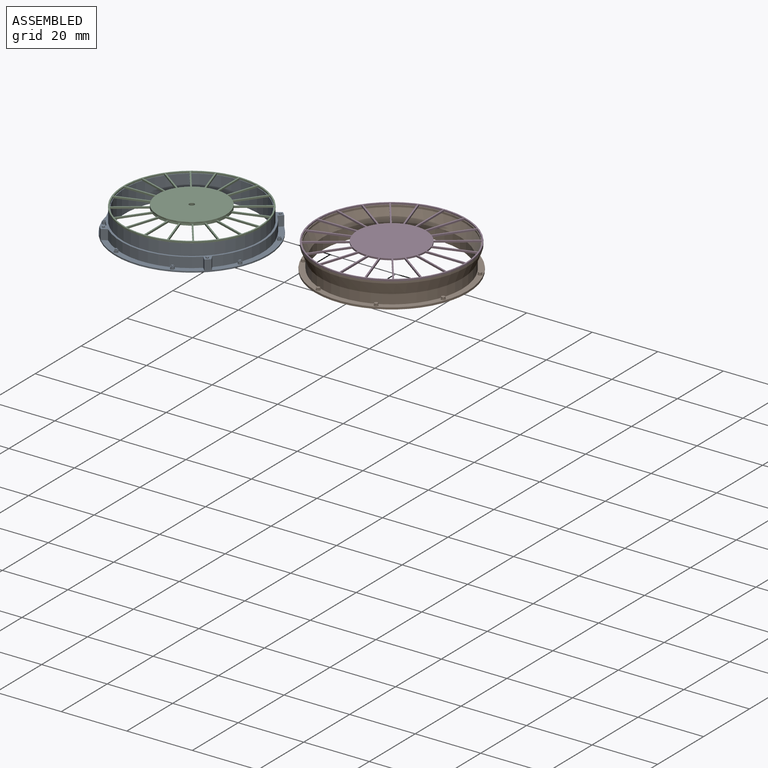
[diagram: assembled view]
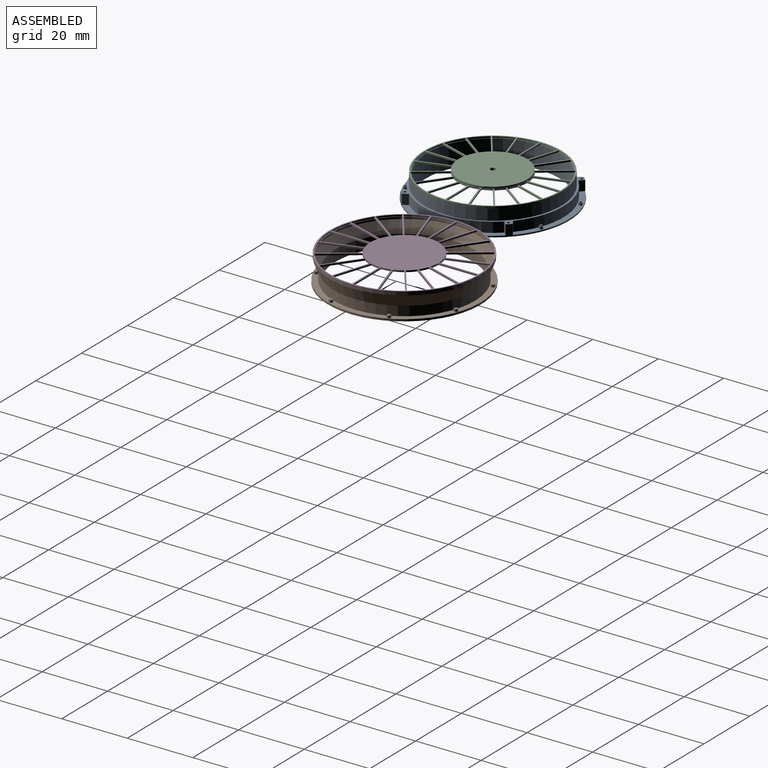
[diagram: assembled view, second angle]
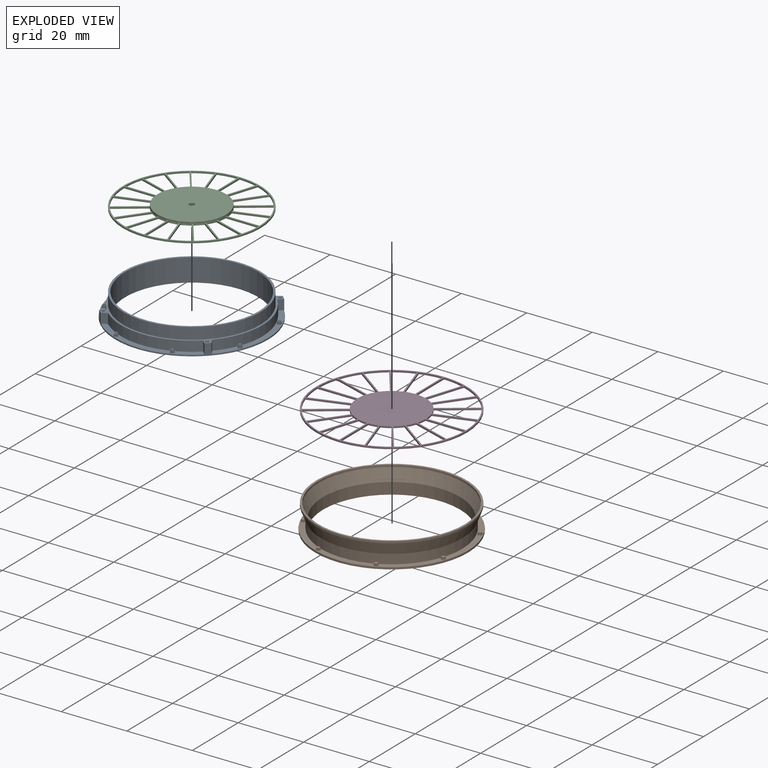
[diagram: exploded view]
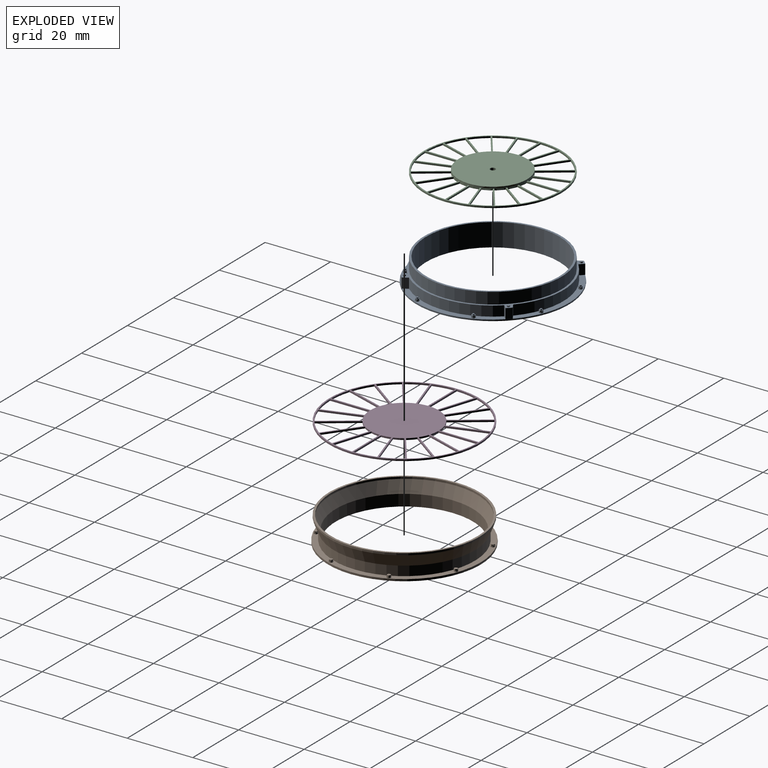
[diagram: exploded view, second angle]
ASSEMBLY  parts=4 mates=2
PART A: 166 faces, bbox 46.6x46.6x7 mm
  f0: plane 0.44x0.07mm, normal (0,0,1), area 0mm2, adj f154,f156
  f1: plane 0.39x0.21mm, normal (0,0,1), area 0mm2, adj f154,f161
  f2: plane 0.37x0.23mm, normal (0,0,1), area 0mm2, adj f154,f160
  f3: plane 0.44x0.07mm, normal (0,0,1), area 0mm2, adj f154,f159
  f4: plane 0.39x0.21mm, normal (0,0,1), area 0mm2, adj f154,f158
  f5: plane 31.66x7.44mm, normal (0,0,1), area 55.8mm2, adj f26,f27,f31,f88,f99,f153
  f6: cylinder r=21.57mm len=28.87mm, axis (0,0,-1), area 96.7mm2, adj f12,f30,f142,f152
  f7: plane 0.44x0.07mm, normal (0,0,1), area 0mm2, adj f143,f145
  f8: plane 0.39x0.21mm, normal (0,0,1), area 0mm2, adj f143,f150
  f9: plane 0.37x0.23mm, normal (0,0,1), area 0mm2, adj f143,f149
  f10: plane 0.44x0.07mm, normal (0,0,1), area 0mm2, adj f143,f148
  f11: plane 0.39x0.21mm, normal (0,0,1), area 0mm2, adj f143,f147
  f12: plane 31.66x7.44mm, normal (0,0,1), area 55.8mm2, adj f6,f27,f66,f77,f142,f152
  f13: cylinder r=21.57mm len=28.87mm, axis (0,0,-1), area 96.7mm2, adj f20,f30,f131,f141
  f14: plane 0.44x0.07mm, normal (0,0,1), area 0mm2, adj f132,f134
  f15: plane 0.39x0.21mm, normal (0,0,1), area 0mm2, adj f132,f139
  f16: plane 0.37x0.23mm, normal (0,0,1), area 0mm2, adj f132,f138
  f17: plane 0.44x0.07mm, normal (0,0,1), area 0mm2, adj f132,f137
  f18: plane 0.39x0.21mm, normal (0,0,1), area 0mm2, adj f132,f136
  f19: cylinder r=21.57mm len=28.87mm, axis (0,0,-1), area 96.7mm2, adj f28,f30,f32,f130
  f20: plane 31.66x7.44mm, normal (0,0,1), area 55.8mm2, adj f13,f27,f44,f55,f131,f141
  f21: plane 0.44x0.07mm, normal (0,0,1), area 0mm2, adj f121,f123
  f22: plane 0.39x0.21mm, normal (0,0,1), area 0mm2, adj f121,f128
  f23: plane 0.37x0.23mm, normal (0,0,1), area 0mm2, adj f121,f127
  f24: plane 0.44x0.07mm, normal (0,0,1), area 0mm2, adj f121,f126
  f25: plane 0.39x0.21mm, normal (0,0,1), area 0mm2, adj f121,f125
  f26: cylinder r=21.57mm len=28.87mm, axis (0,0,-1), area 96.7mm2, adj f5,f30,f31,f153
  f27: cylinder r=23.32mm len=46.64mm, axis (0,0,-1), area 86.4mm2, adj f5,f12,f20,f28,f29,f30,f31,f32
  f28: plane 31.66x7.44mm, normal (0,0,1), area 55.8mm2, adj f19,f27,f32,f33,f110,f130
  f29: plane 46.64x46.64mm, normal (0,0,-1), area 404.5mm2, adj f27,f163
  f30: plane 43.14x43.14mm, normal (0,0,1), area 92.1mm2, adj f6,f13,f19,f26,f27,f31,f32,f121
  f31: plane 3.06x1.24mm, normal (-0.71,-0.71,0), area 5.3mm2, adj f5,f26,f27,f30
  f32: plane 3.06x1.55mm, normal (0.85,0.52,0), area 5.6mm2, adj f19,f27,f28,f30
  f33: cylinder r=0.6mm len=1.2mm, axis (0,0,-1), area 1.1mm2, adj f28,f34
  f34: plane 1.2x1.2mm, normal (0,0,1), area 0.3mm2, adj f33,f35,f36,f37,f38,f39,f40
  f35: plane 0.58x0.38mm, normal (0.99,-0.15,-0.05), area 0.2mm2, adj f34,f36,f40,f41
  f36: plane 0.47x0.38mm, normal (0.62,0.78,-0.05), area 0.2mm2, adj f34,f35,f37,f41
  f37: plane 0.55x0.38mm, normal (-0.36,0.93,-0.05), area 0.2mm2, adj f34,f36,f38,f41
  f38: plane 0.58x0.38mm, normal (-0.99,0.15,-0.05), area 0.2mm2, adj f34,f37,f39,f41
  f39: plane 0.47x0.38mm, normal (-0.62,-0.78,-0.05), area 0.2mm2, adj f34,f38,f40,f41
  f40: plane 0.55x0.38mm, normal (0.36,-0.93,-0.05), area 0.2mm2, adj f34,f35,f39,f41
  f41: plane 1.17x1.1mm, normal (0,0,1), area 0.6mm2, adj f35,f36,f37,f38,f39,f40,f42
  f42: cylinder r=0.33mm len=0.66mm, axis (0,0,-1), area 0.6mm2, adj f41,f43
  f43: plane 0.66x0.66mm, normal (0,0,1), area 0.3mm2, adj f42
  f44: cylinder r=0.6mm len=1.2mm, axis (0,0,-1), area 1.1mm2, adj f20,f45
  f45: plane 1.2x1.2mm, normal (0,0,1), area 0.3mm2, adj f44,f46,f47,f48,f49,f50,f51
  f46: plane 0.48x0.38mm, normal (0.8,0.59,-0.05), area 0.2mm2, adj f45,f47,f51,f52
  f47: plane 0.59x0.38mm, normal (-0.11,0.99,-0.05), area 0.2mm2, adj f45,f46,f48,f52
  f48: plane 0.54x0.38mm, normal (-0.91,0.4,-0.05), area 0.2mm2, adj f45,f47,f49,f52
  f49: plane 0.48x0.38mm, normal (-0.8,-0.59,-0.05), area 0.2mm2, adj f45,f48,f50,f52
  f50: plane 0.59x0.38mm, normal (0.11,-0.99,-0.05), area 0.2mm2, adj f45,f49,f51,f52
  f51: plane 0.54x0.38mm, normal (0.91,-0.4,-0.05), area 0.2mm2, adj f45,f46,f50,f52
  f52: plane 1.18x1.08mm, normal (0,0,1), area 0.6mm2, adj f46,f47,f48,f49,f50,f51,f53
  f53: cylinder r=0.33mm len=0.66mm, axis (0,0,-1), area 0.6mm2, adj f52,f54
  f54: plane 0.66x0.66mm, normal (0,0,1), area 0.3mm2, adj f53
  f55: cylinder r=0.6mm len=1.2mm, axis (0,0,-1), area 1.1mm2, adj f20,f56
  f56: plane 1.2x1.2mm, normal (0,0,1), area 0.3mm2, adj f55,f57,f58,f59,f60,f61,f62
  f57: plane 0.58x0.38mm, normal (0.15,0.99,-0.05), area 0.2mm2, adj f56,f58,f62,f63
  f58: plane 0.47x0.38mm, normal (-0.78,0.62,-0.05), area 0.2mm2, adj f56,f57,f59,f63
  f59: plane 0.55x0.38mm, normal (-0.93,-0.36,-0.05), area 0.2mm2, adj f56,f58,f60,f63
  f60: plane 0.58x0.38mm, normal (-0.15,-0.99,-0.05), area 0.2mm2, adj f56,f59,f61,f63
  f61: plane 0.47x0.38mm, normal (0.78,-0.62,-0.05), area 0.2mm2, adj f56,f60,f62,f63
  f62: plane 0.55x0.38mm, normal (0.93,0.36,-0.05), area 0.2mm2, adj f56,f57,f61,f63
  f63: plane 1.17x1.1mm, normal (0,0,1), area 0.6mm2, adj f57,f58,f59,f60,f61,f62,f64
  f64: cylinder r=0.33mm len=0.66mm, axis (0,0,-1), area 0.6mm2, adj f63,f65
  f65: plane 0.66x0.66mm, normal (0,0,1), area 0.3mm2, adj f64
  f66: cylinder r=0.6mm len=1.2mm, axis (0,0,-1), area 1.1mm2, adj f12,f67
  f67: plane 1.2x1.2mm, normal (0,0,1), area 0.3mm2, adj f66,f68,f69,f70,f71,f72,f73
  f68: plane 0.48x0.38mm, normal (-0.59,0.8,-0.05), area 0.2mm2, adj f67,f69,f73,f74
  f69: plane 0.59x0.38mm, normal (-0.99,-0.11,-0.05), area 0.2mm2, adj f67,f68,f70,f74
  f70: plane 0.54x0.38mm, normal (-0.4,-0.91,-0.05), area 0.2mm2, adj f67,f69,f71,f74
  f71: plane 0.48x0.38mm, normal (0.59,-0.8,-0.05), area 0.2mm2, adj f67,f70,f72,f74
  f72: plane 0.59x0.38mm, normal (0.99,0.11,-0.05), area 0.2mm2, adj f67,f71,f73,f74
  f73: plane 0.54x0.38mm, normal (0.4,0.91,-0.05), area 0.2mm2, adj f67,f68,f72,f74
  f74: plane 1.18x1.08mm, normal (0,0,1), area 0.6mm2, adj f68,f69,f70,f71,f72,f73,f75
  f75: cylinder r=0.33mm len=0.66mm, axis (0,0,-1), area 0.6mm2, adj f74,f76
  f76: plane 0.66x0.66mm, normal (0,0,1), area 0.3mm2, adj f75
  f77: cylinder r=0.6mm len=1.2mm, axis (0,0,-1), area 1.1mm2, adj f12,f78
  f78: plane 1.2x1.2mm, normal (0,0,1), area 0.3mm2, adj f77,f79,f80,f81,f82,f83,f84
  f79: plane 0.58x0.38mm, normal (-0.99,0.15,-0.05), area 0.2mm2, adj f78,f80,f84,f85
  f80: plane 0.47x0.38mm, normal (-0.62,-0.78,-0.05), area 0.2mm2, adj f78,f79,f81,f85
  f81: plane 0.55x0.38mm, normal (0.36,-0.93,-0.05), area 0.2mm2, adj f78,f80,f82,f85
  f82: plane 0.58x0.38mm, normal (0.99,-0.15,-0.05), area 0.2mm2, adj f78,f81,f83,f85
  f83: plane 0.47x0.38mm, normal (0.62,0.78,-0.05), area 0.2mm2, adj f78,f82,f84,f85
  f84: plane 0.55x0.38mm, normal (-0.36,0.93,-0.05), area 0.2mm2, adj f78,f79,f83,f85
  f85: plane 1.17x1.1mm, normal (0,0,1), area 0.6mm2, adj f79,f80,f81,f82,f83,f84,f86
  f86: cylinder r=0.33mm len=0.66mm, axis (0,0,-1), area 0.6mm2, adj f85,f87
  f87: plane 0.66x0.66mm, normal (0,0,1), area 0.3mm2, adj f86
  f88: cylinder r=0.6mm len=1.2mm, axis (0,0,-1), area 1.1mm2, adj f5,f89
  f89: plane 1.2x1.2mm, normal (0,0,1), area 0.3mm2, adj f88,f90,f91,f92,f93,f94,f95
  f90: plane 0.48x0.38mm, normal (-0.8,-0.59,-0.05), area 0.2mm2, adj f89,f91,f95,f96
  f91: plane 0.59x0.38mm, normal (0.11,-0.99,-0.05), area 0.2mm2, adj f89,f90,f92,f96
  f92: plane 0.54x0.38mm, normal (0.91,-0.4,-0.05), area 0.2mm2, adj f89,f91,f93,f96
  f93: plane 0.48x0.38mm, normal (0.8,0.59,-0.05), area 0.2mm2, adj f89,f92,f94,f96
  f94: plane 0.59x0.38mm, normal (-0.11,0.99,-0.05), area 0.2mm2, adj f89,f93,f95,f96
  f95: plane 0.54x0.38mm, normal (-0.91,0.4,-0.05), area 0.2mm2, adj f89,f90,f94,f96
  f96: plane 1.18x1.08mm, normal (0,0,1), area 0.6mm2, adj f90,f91,f92,f93,f94,f95,f97
  f97: cylinder r=0.33mm len=0.66mm, axis (0,0,-1), area 0.6mm2, adj f96,f98
  f98: plane 0.66x0.66mm, normal (0,0,1), area 0.3mm2, adj f97
  f99: cylinder r=0.6mm len=1.2mm, axis (0,0,-1), area 1.1mm2, adj f5,f100
  f100: plane 1.2x1.2mm, normal (0,0,1), area 0.3mm2, adj f99,f101,f102,f103,f104,f105,f106
  f101: plane 0.58x0.38mm, normal (-0.15,-0.99,-0.05), area 0.2mm2, adj f100,f102,f106,f107
  f102: plane 0.47x0.38mm, normal (0.78,-0.62,-0.05), area 0.2mm2, adj f100,f101,f103,f107
  f103: plane 0.55x0.38mm, normal (0.93,0.36,-0.05), area 0.2mm2, adj f100,f102,f104,f107
  f104: plane 0.58x0.38mm, normal (0.15,0.99,-0.05), area 0.2mm2, adj f100,f103,f105,f107
  f105: plane 0.47x0.38mm, normal (-0.78,0.62,-0.05), area 0.2mm2, adj f100,f104,f106,f107
  f106: plane 0.55x0.38mm, normal (-0.93,-0.36,-0.05), area 0.2mm2, adj f100,f101,f105,f107
  f107: plane 1.17x1.1mm, normal (0,0,1), area 0.6mm2, adj f101,f102,f103,f104,f105,f106,f108
  f108: cylinder r=0.33mm len=0.66mm, axis (0,0,-1), area 0.6mm2, adj f107,f109
  f109: plane 0.66x0.66mm, normal (0,0,1), area 0.3mm2, adj f108
  f110: cylinder r=0.6mm len=1.2mm, axis (0,0,-1), area 1.1mm2, adj f28,f111
  f111: plane 1.2x1.2mm, normal (0,0,1), area 0.3mm2, adj f110,f112,f113,f114,f115,f116,f117
  f112: plane 0.48x0.38mm, normal (0.59,-0.8,-0.05), area 0.2mm2, adj f111,f113,f117,f118
  f113: plane 0.59x0.38mm, normal (0.99,0.11,-0.05), area 0.2mm2, adj f111,f112,f114,f118
  f114: plane 0.54x0.38mm, normal (0.4,0.91,-0.05), area 0.2mm2, adj f111,f113,f115,f118
  f115: plane 0.48x0.38mm, normal (-0.59,0.8,-0.05), area 0.2mm2, adj f111,f114,f116,f118
  f116: plane 0.59x0.38mm, normal (-0.99,-0.11,-0.05), area 0.2mm2, adj f111,f115,f117,f118
  f117: plane 0.54x0.38mm, normal (-0.4,-0.91,-0.05), area 0.2mm2, adj f111,f112,f116,f118
  f118: plane 1.18x1.08mm, normal (0,0,1), area 0.6mm2, adj f112,f113,f114,f115,f116,f117,f119
  f119: cylinder r=0.33mm len=0.66mm, axis (0,0,-1), area 0.6mm2, adj f118,f120
  f120: plane 0.66x0.66mm, normal (0,0,1), area 0.3mm2, adj f119
  f121: cylinder r=0.44mm len=0.87mm, axis (0,0,-1), area 0.2mm2, adj f21,f22,f23,f24,f25,f30,f122
  f122: plane 0.37x0.23mm, normal (0,0,1), area 0mm2, adj f121,f124
  f123: plane 0.44x0.3mm, normal (1,-0.04,0), area 0.1mm2, adj f21,f124,f128,f129
  f124: plane 0.37x0.3mm, normal (0.53,0.85,0), area 0.1mm2, adj f122,f123,f125,f129
  f125: plane 0.39x0.3mm, normal (-0.47,0.88,0), area 0.1mm2, adj f25,f124,f126,f129
  f126: plane 0.44x0.3mm, normal (-1,0.04,0), area 0.1mm2, adj f24,f125,f127,f129
  f127: plane 0.37x0.3mm, normal (-0.53,-0.85,0), area 0.1mm2, adj f23,f126,f128,f129
  f128: plane 0.39x0.3mm, normal (0.47,-0.88,0), area 0.1mm2, adj f22,f123,f127,f129
  f129: plane 0.87x0.77mm, normal (0,0,1), area 0.5mm2, adj f123,f124,f125,f126,f127,f128
  f130: plane 3.06x1.24mm, normal (0.71,-0.71,0), area 5.3mm2, adj f19,f27,f28,f30
  f131: plane 3.06x1.55mm, normal (-0.52,0.85,0), area 5.6mm2, adj f13,f20,f27,f30
  f132: cylinder r=0.44mm len=0.87mm, axis (0,0,-1), area 0.2mm2, adj f14,f15,f16,f17,f18,f30,f133
  f133: plane 0.37x0.23mm, normal (0,0,1), area 0mm2, adj f132,f135
  f134: plane 0.44x0.3mm, normal (0.04,1,0), area 0.1mm2, adj f14,f135,f139,f140
  f135: plane 0.37x0.3mm, normal (-0.85,0.53,0), area 0.1mm2, adj f133,f134,f136,f140
  f136: plane 0.39x0.3mm, normal (-0.88,-0.47,0), area 0.1mm2, adj f18,f135,f137,f140
  f137: plane 0.44x0.3mm, normal (-0.04,-1,0), area 0.1mm2, adj f17,f136,f138,f140
  f138: plane 0.37x0.3mm, normal (0.85,-0.53,0), area 0.1mm2, adj f16,f137,f139,f140
  f139: plane 0.39x0.3mm, normal (0.88,0.47,0), area 0.1mm2, adj f15,f134,f138,f140
  f140: plane 0.87x0.77mm, normal (0,0,1), area 0.5mm2, adj f134,f135,f136,f137,f138,f139
  f141: plane 3.06x1.24mm, normal (0.71,0.71,0), area 5.3mm2, adj f13,f20,f27,f30
  f142: plane 3.06x1.55mm, normal (-0.85,-0.52,0), area 5.6mm2, adj f6,f12,f27,f30
  f143: cylinder r=0.44mm len=0.87mm, axis (0,0,-1), area 0.2mm2, adj f7,f8,f9,f10,f11,f30,f144
  f144: plane 0.37x0.23mm, normal (0,0,1), area 0mm2, adj f143,f146
  f145: plane 0.44x0.3mm, normal (-1,0.04,0), area 0.1mm2, adj f7,f146,f150,f151
  f146: plane 0.37x0.3mm, normal (-0.53,-0.85,0), area 0.1mm2, adj f144,f145,f147,f151
  f147: plane 0.39x0.3mm, normal (0.47,-0.88,0), area 0.1mm2, adj f11,f146,f148,f151
  f148: plane 0.44x0.3mm, normal (1,-0.04,0), area 0.1mm2, adj f10,f147,f149,f151
  f149: plane 0.37x0.3mm, normal (0.53,0.85,0), area 0.1mm2, adj f9,f148,f150,f151
  f150: plane 0.39x0.3mm, normal (-0.47,0.88,0), area 0.1mm2, adj f8,f145,f149,f151
  f151: plane 0.87x0.77mm, normal (0,0,1), area 0.5mm2, adj f145,f146,f147,f148,f149,f150
  f152: plane 3.06x1.24mm, normal (-0.71,0.71,0), area 5.3mm2, adj f6,f12,f27,f30
  f153: plane 3.06x1.55mm, normal (0.52,-0.85,0), area 5.6mm2, adj f5,f26,f27,f30
  f154: cylinder r=0.44mm len=0.87mm, axis (0,0,-1), area 0.2mm2, adj f0,f1,f2,f3,f4,f30,f155
  f155: plane 0.37x0.23mm, normal (0,0,1), area 0mm2, adj f154,f157
  f156: plane 0.44x0.3mm, normal (-0.04,-1,0), area 0.1mm2, adj f0,f157,f161,f162
  f157: plane 0.37x0.3mm, normal (0.85,-0.53,0), area 0.1mm2, adj f155,f156,f158,f162
  f158: plane 0.39x0.3mm, normal (0.88,0.47,0), area 0.1mm2, adj f4,f157,f159,f162
  f159: plane 0.44x0.3mm, normal (0.04,1,0), area 0.1mm2, adj f3,f158,f160,f162
  f160: plane 0.37x0.3mm, normal (-0.85,0.53,0), area 0.1mm2, adj f2,f159,f161,f162
  f161: plane 0.39x0.3mm, normal (-0.88,-0.47,0), area 0.1mm2, adj f1,f156,f160,f162
  f162: plane 0.87x0.77mm, normal (0,0,1), area 0.5mm2, adj f156,f157,f158,f159,f160,f161
  f163: cylinder r=20.37mm len=40.74mm, axis (0,0,-1), area 894.7mm2, adj f29,f165
  f164: cylinder r=20.97mm len=41.94mm, axis (0,0,-1), area 460.5mm2, adj f30,f165
  f165: plane 41.94x41.94mm, normal (0,0,1), area 77.9mm2, adj f163,f164
PART B: 82 faces, bbox 46.6x46.6x7.6 mm
  f0: plane 0.51x0.38mm, normal (0.45,-0.89,0), area 0.2mm2, adj f1,f5,f6,f8
  f1: plane 0.57x0.38mm, normal (1,-0.06,0), area 0.2mm2, adj f0,f2,f6,f8
  f2: plane 0.47x0.38mm, normal (0.55,0.84,0), area 0.2mm2, adj f1,f3,f6,f8
  f3: plane 0.51x0.38mm, normal (-0.45,0.89,0), area 0.2mm2, adj f2,f4,f6,f8
  f4: plane 0.57x0.38mm, normal (-1,0.06,0), area 0.2mm2, adj f3,f5,f6,f8
  f5: plane 0.47x0.38mm, normal (-0.55,-0.84,0), area 0.2mm2, adj f0,f4,f6,f8
  f6: plane 1.13x1.02mm, normal (0,0,1), area 0.8mm2, adj f0,f1,f2,f3,f4,f5
  f7: cylinder r=0.6mm len=1.2mm, axis (0,0,-1), area 1.1mm2, adj f8,f64
  f8: plane 1.2x1.2mm, normal (0,0,1), area 0.3mm2, adj f0,f1,f2,f3,f4,f5,f7
  f9: plane 0.54x0.38mm, normal (-0.31,-0.95,0), area 0.2mm2, adj f10,f14,f15,f17
  f10: plane 0.42x0.38mm, normal (0.66,-0.75,0), area 0.2mm2, adj f9,f11,f15,f17
  f11: plane 0.56x0.38mm, normal (0.98,0.2,0), area 0.2mm2, adj f10,f12,f15,f17
  f12: plane 0.54x0.38mm, normal (0.31,0.95,0), area 0.2mm2, adj f11,f13,f15,f17
  f13: plane 0.42x0.38mm, normal (-0.66,0.75,0), area 0.2mm2, adj f12,f14,f15,f17
  f14: plane 0.56x0.38mm, normal (-0.98,-0.2,0), area 0.2mm2, adj f9,f13,f15,f17
  f15: plane 1.11x1.08mm, normal (0,0,1), area 0.8mm2, adj f9,f10,f11,f12,f13,f14
  f16: cylinder r=0.6mm len=1.2mm, axis (0,0,-1), area 1.1mm2, adj f17,f64
  f17: plane 1.2x1.2mm, normal (0,0,1), area 0.3mm2, adj f9,f10,f11,f12,f13,f14,f16
  f18: plane 0.51x0.38mm, normal (-0.89,-0.45,0), area 0.2mm2, adj f19,f23,f24,f26
  f19: plane 0.57x0.38mm, normal (-0.06,-1,0), area 0.2mm2, adj f18,f20,f24,f26
  f20: plane 0.47x0.38mm, normal (0.84,-0.55,0), area 0.2mm2, adj f19,f21,f24,f26
  f21: plane 0.51x0.38mm, normal (0.89,0.45,0), area 0.2mm2, adj f20,f22,f24,f26
  f22: plane 0.57x0.38mm, normal (0.06,1,0), area 0.2mm2, adj f21,f23,f24,f26
  f23: plane 0.47x0.38mm, normal (-0.84,0.55,0), area 0.2mm2, adj f18,f22,f24,f26
  f24: plane 1.13x1.02mm, normal (0,0,1), area 0.8mm2, adj f18,f19,f20,f21,f22,f23
  f25: cylinder r=0.6mm len=1.2mm, axis (0,0,-1), area 1.1mm2, adj f26,f64
  f26: plane 1.2x1.2mm, normal (0,0,1), area 0.3mm2, adj f18,f19,f20,f21,f22,f23,f25
  f27: plane 0.54x0.38mm, normal (-0.95,0.31,0), area 0.2mm2, adj f28,f32,f33,f35
  f28: plane 0.42x0.38mm, normal (-0.75,-0.66,0), area 0.2mm2, adj f27,f29,f33,f35
  f29: plane 0.56x0.38mm, normal (0.2,-0.98,0), area 0.2mm2, adj f28,f30,f33,f35
  f30: plane 0.54x0.38mm, normal (0.95,-0.31,0), area 0.2mm2, adj f29,f31,f33,f35
  f31: plane 0.42x0.38mm, normal (0.75,0.66,0), area 0.2mm2, adj f30,f32,f33,f35
  f32: plane 0.56x0.38mm, normal (-0.2,0.98,0), area 0.2mm2, adj f27,f31,f33,f35
  f33: plane 1.11x1.08mm, normal (0,0,1), area 0.8mm2, adj f27,f28,f29,f30,f31,f32
  f34: cylinder r=0.6mm len=1.2mm, axis (0,0,-1), area 1.1mm2, adj f35,f64
  f35: plane 1.2x1.2mm, normal (0,0,1), area 0.3mm2, adj f27,f28,f29,f30,f31,f32,f34
  f36: plane 0.51x0.38mm, normal (-0.45,0.89,0), area 0.2mm2, adj f37,f41,f42,f44
  f37: plane 0.57x0.38mm, normal (-1,0.06,0), area 0.2mm2, adj f36,f38,f42,f44
  f38: plane 0.47x0.38mm, normal (-0.55,-0.84,0), area 0.2mm2, adj f37,f39,f42,f44
  f39: plane 0.51x0.38mm, normal (0.45,-0.89,0), area 0.2mm2, adj f38,f40,f42,f44
  f40: plane 0.57x0.38mm, normal (1,-0.06,0), area 0.2mm2, adj f39,f41,f42,f44
  f41: plane 0.47x0.38mm, normal (0.55,0.84,0), area 0.2mm2, adj f36,f40,f42,f44
  f42: plane 1.13x1.02mm, normal (0,0,1), area 0.8mm2, adj f36,f37,f38,f39,f40,f41
  f43: cylinder r=0.6mm len=1.2mm, axis (0,0,-1), area 1.1mm2, adj f44,f64
  f44: plane 1.2x1.2mm, normal (0,0,1), area 0.3mm2, adj f36,f37,f38,f39,f40,f41,f43
  f45: plane 0.54x0.38mm, normal (0.31,0.95,0), area 0.2mm2, adj f46,f50,f51,f53
  f46: plane 0.42x0.38mm, normal (-0.66,0.75,0), area 0.2mm2, adj f45,f47,f51,f53
  f47: plane 0.56x0.38mm, normal (-0.98,-0.2,0), area 0.2mm2, adj f46,f48,f51,f53
  f48: plane 0.54x0.38mm, normal (-0.31,-0.95,0), area 0.2mm2, adj f47,f49,f51,f53
  f49: plane 0.42x0.38mm, normal (0.66,-0.75,0), area 0.2mm2, adj f48,f50,f51,f53
  f50: plane 0.56x0.38mm, normal (0.98,0.2,0), area 0.2mm2, adj f45,f49,f51,f53
  f51: plane 1.11x1.08mm, normal (0,0,1), area 0.8mm2, adj f45,f46,f47,f48,f49,f50
  f52: cylinder r=0.6mm len=1.2mm, axis (0,0,-1), area 1.1mm2, adj f53,f64
  f53: plane 1.2x1.2mm, normal (0,0,1), area 0.3mm2, adj f45,f46,f47,f48,f49,f50,f52
  f54: plane 0.51x0.38mm, normal (0.89,0.45,0), area 0.2mm2, adj f55,f59,f60,f62
  f55: plane 0.57x0.38mm, normal (0.06,1,0), area 0.2mm2, adj f54,f56,f60,f62
  f56: plane 0.47x0.38mm, normal (-0.84,0.55,0), area 0.2mm2, adj f55,f57,f60,f62
  f57: plane 0.51x0.38mm, normal (-0.89,-0.45,0), area 0.2mm2, adj f56,f58,f60,f62
  f58: plane 0.57x0.38mm, normal (-0.06,-1,0), area 0.2mm2, adj f57,f59,f60,f62
  f59: plane 0.47x0.38mm, normal (0.84,-0.55,0), area 0.2mm2, adj f54,f58,f60,f62
  f60: plane 1.13x1.02mm, normal (0,0,1), area 0.8mm2, adj f54,f55,f56,f57,f58,f59
  f61: cylinder r=0.6mm len=1.2mm, axis (0,0,-1), area 1.1mm2, adj f62,f64
  f62: plane 1.2x1.2mm, normal (0,0,1), area 0.3mm2, adj f54,f55,f56,f57,f58,f59,f61
  f63: cylinder r=21.57mm len=43.14mm, axis (0,0,1), area 392.4mm2, adj f64,f72
  f64: plane 46.64x46.64mm, normal (0,0,1), area 237.4mm2, adj f7,f16,f25,f34,f43,f52,f61,f63
  f65: cylinder r=23.32mm len=46.64mm, axis (0,0,1), area 87.9mm2, adj f64,f66
  f66: plane 46.64x46.64mm, normal (0,0,-1), area 326.6mm2, adj f65,f67
  f67: cylinder r=20.97mm len=41.94mm, axis (0,0,1), area 460.5mm2, adj f66,f68
  f68: cone r=22.36mm half-angle=21.7deg, axis (0,0,1), area 511.9mm2, adj f67,f69
  f69: cylinder r=22.36mm len=44.72mm, axis (0,0,1), area 84.3mm2, adj f68,f70
  f70: plane 45.92x45.92mm, normal (0,0,1), area 85.4mm2, adj f69,f71
  f71: cylinder r=22.96mm len=45.92mm, axis (0,0,1), area 86.6mm2, adj f70,f72
  f72: cone r=21.57mm half-angle=21.7deg, axis (0,0,1), area 526.1mm2, adj f63,f71
  f73: cylinder r=0.6mm len=1.2mm, axis (0,0,-1), area 1.1mm2, adj f64,f74
  f74: plane 1.2x1.2mm, normal (0,0,1), area 0.3mm2, adj f73,f75,f76,f77,f78,f79,f80
  f75: plane 0.54x0.38mm, normal (0.95,-0.31,0), area 0.2mm2, adj f74,f76,f80,f81
  f76: plane 0.42x0.38mm, normal (0.75,0.66,0), area 0.2mm2, adj f74,f75,f77,f81
  f77: plane 0.56x0.38mm, normal (-0.2,0.98,0), area 0.2mm2, adj f74,f76,f78,f81
  f78: plane 0.54x0.38mm, normal (-0.95,0.31,0), area 0.2mm2, adj f74,f77,f79,f81
  f79: plane 0.42x0.38mm, normal (-0.75,-0.66,0), area 0.2mm2, adj f74,f78,f80,f81
  f80: plane 0.56x0.38mm, normal (0.2,-0.98,0), area 0.2mm2, adj f74,f75,f79,f81
  f81: plane 1.11x1.08mm, normal (0,0,1), area 0.8mm2, adj f75,f76,f77,f78,f79,f80
PART C: 66 faces, bbox 41.9x41.9x1 mm
  f0: cylinder r=20.53mm len=5.34mm, axis (0,0,-1), area 3mm2, adj f5,f6,f8,f10
  f1: cylinder r=20.97mm len=41.94mm, axis (0,0,-1), area 65.9mm2, adj f5,f6
  f2: plane 10.05x0.5mm, normal (-1,0,0), area 5mm2, adj f5,f6,f60,f63
  f3: plane 10.05x0.5mm, normal (1,0,0), area 5mm2, adj f4,f5,f6,f63
  f4: cylinder r=20.53mm len=5.92mm, axis (0,0,-1), area 3mm2, adj f3,f5,f6,f7
  f5: plane 41.94x41.94mm, normal (0,0,1), area 144.8mm2, adj f0,f1,f2,f3,f4,f7,f8,f9
  f6: plane 41.94x41.94mm, normal (0,0,-1), area 488.2mm2, adj f0,f1,f2,f3,f4,f7,f8,f9
  f7: plane 9.56x3.11mm, normal (-0.95,0.31,0), area 5mm2, adj f4,f5,f6,f63
  f8: plane 9.56x3.11mm, normal (0.95,-0.31,0), area 5mm2, adj f0,f5,f6,f63
  f9: cylinder r=20.53mm len=4.24mm, axis (0,0,-1), area 3mm2, adj f5,f6,f11,f13
  f10: plane 8.13x5.91mm, normal (-0.81,0.59,0), area 5mm2, adj f0,f5,f6,f63
  f11: plane 8.13x5.91mm, normal (0.81,-0.59,0), area 5mm2, adj f5,f6,f9,f63
  f12: cylinder r=20.53mm len=5.34mm, axis (0,0,-1), area 3mm2, adj f5,f6,f14,f16
  f13: plane 8.13x5.91mm, normal (-0.59,0.81,0), area 5mm2, adj f5,f6,f9,f63
  f14: plane 8.13x5.91mm, normal (0.59,-0.81,0), area 5mm2, adj f5,f6,f12,f63
  f15: cylinder r=20.53mm len=5.92mm, axis (0,0,-1), area 3mm2, adj f5,f6,f17,f19
  f16: plane 9.56x3.11mm, normal (-0.31,0.95,0), area 5mm2, adj f5,f6,f12,f63
  f17: plane 9.56x3.11mm, normal (0.31,-0.95,0), area 5mm2, adj f5,f6,f15,f63
  f18: cylinder r=20.53mm len=5.92mm, axis (0,0,-1), area 3mm2, adj f5,f6,f20,f22
  f19: plane 10.05x0.5mm, normal (0,1,0), area 5mm2, adj f5,f6,f15,f63
  f20: plane 10.05x0.5mm, normal (0,-1,0), area 5mm2, adj f5,f6,f18,f63
  f21: cylinder r=20.53mm len=5.34mm, axis (0,0,-1), area 3mm2, adj f5,f6,f23,f25
  f22: plane 9.56x3.11mm, normal (0.31,0.95,0), area 5mm2, adj f5,f6,f18,f63
  f23: plane 9.56x3.11mm, normal (-0.31,-0.95,0), area 5mm2, adj f5,f6,f21,f63
  f24: cylinder r=20.53mm len=4.24mm, axis (0,0,-1), area 3mm2, adj f5,f6,f26,f28
  f25: plane 8.13x5.91mm, normal (0.59,0.81,0), area 5mm2, adj f5,f6,f21,f63
  f26: plane 8.13x5.91mm, normal (-0.59,-0.81,0), area 5mm2, adj f5,f6,f24,f63
  f27: cylinder r=20.53mm len=5.34mm, axis (0,0,-1), area 3mm2, adj f5,f6,f29,f31
  f28: plane 8.13x5.91mm, normal (0.81,0.59,0), area 5mm2, adj f5,f6,f24,f63
  f29: plane 8.13x5.91mm, normal (-0.81,-0.59,0), area 5mm2, adj f5,f6,f27,f63
  f30: cylinder r=20.53mm len=5.92mm, axis (0,0,-1), area 3mm2, adj f5,f6,f32,f34
  f31: plane 9.56x3.11mm, normal (0.95,0.31,0), area 5mm2, adj f5,f6,f27,f63
  f32: plane 9.56x3.11mm, normal (-0.95,-0.31,0), area 5mm2, adj f5,f6,f30,f63
  f33: cylinder r=20.53mm len=5.92mm, axis (0,0,-1), area 3mm2, adj f5,f6,f35,f37
  f34: plane 10.05x0.5mm, normal (1,0,0), area 5mm2, adj f5,f6,f30,f63
  f35: plane 10.05x0.5mm, normal (-1,0,0), area 5mm2, adj f5,f6,f33,f63
  f36: cylinder r=20.53mm len=5.34mm, axis (0,0,-1), area 3mm2, adj f5,f6,f38,f40
  f37: plane 9.56x3.11mm, normal (0.95,-0.31,0), area 5mm2, adj f5,f6,f33,f63
  f38: plane 9.56x3.11mm, normal (-0.95,0.31,0), area 5mm2, adj f5,f6,f36,f63
  f39: cylinder r=20.53mm len=4.24mm, axis (0,0,-1), area 3mm2, adj f5,f6,f41,f43
  f40: plane 8.13x5.91mm, normal (0.81,-0.59,0), area 5mm2, adj f5,f6,f36,f63
  f41: plane 8.13x5.91mm, normal (-0.81,0.59,0), area 5mm2, adj f5,f6,f39,f63
  f42: cylinder r=20.53mm len=5.34mm, axis (0,0,-1), area 3mm2, adj f5,f6,f44,f46
  f43: plane 8.13x5.91mm, normal (0.59,-0.81,0), area 5mm2, adj f5,f6,f39,f63
  f44: plane 8.13x5.91mm, normal (-0.59,0.81,0), area 5mm2, adj f5,f6,f42,f63
  f45: cylinder r=20.53mm len=5.92mm, axis (0,0,-1), area 3mm2, adj f5,f6,f47,f49
  f46: plane 9.56x3.11mm, normal (0.31,-0.95,0), area 5mm2, adj f5,f6,f42,f63
  f47: plane 9.56x3.11mm, normal (-0.31,0.95,0), area 5mm2, adj f5,f6,f45,f63
  f48: cylinder r=20.53mm len=5.92mm, axis (0,0,-1), area 3mm2, adj f5,f6,f50,f52
  f49: plane 10.05x0.5mm, normal (0,-1,0), area 5mm2, adj f5,f6,f45,f63
  f50: plane 10.05x0.5mm, normal (0,1,0), area 5mm2, adj f5,f6,f48,f63
  f51: cylinder r=20.53mm len=5.34mm, axis (0,0,-1), area 3mm2, adj f5,f6,f53,f55
  f52: plane 9.56x3.11mm, normal (-0.31,-0.95,0), area 5mm2, adj f5,f6,f48,f63
  f53: plane 9.56x3.11mm, normal (0.31,0.95,0), area 5mm2, adj f5,f6,f51,f63
  f54: cylinder r=20.53mm len=4.24mm, axis (0,0,-1), area 3mm2, adj f5,f6,f56,f58
  f55: plane 8.13x5.91mm, normal (-0.59,-0.81,0), area 5mm2, adj f5,f6,f51,f63
  f56: plane 8.13x5.91mm, normal (0.59,0.81,0), area 5mm2, adj f5,f6,f54,f63
  f57: cylinder r=20.53mm len=5.34mm, axis (0,0,-1), area 3mm2, adj f5,f6,f59,f61
  f58: plane 8.13x5.91mm, normal (-0.81,-0.59,0), area 5mm2, adj f5,f6,f54,f63
  f59: plane 8.13x5.91mm, normal (0.81,0.59,0), area 5mm2, adj f5,f6,f57,f63
  f60: cylinder r=20.53mm len=5.92mm, axis (0,0,-1), area 3mm2, adj f2,f5,f6,f62
  f61: plane 9.56x3.11mm, normal (-0.95,-0.31,0), area 5mm2, adj f5,f6,f57,f63
  f62: plane 9.56x3.11mm, normal (0.95,0.31,0), area 5mm2, adj f5,f6,f60,f63
  f63: cylinder r=10.49mm len=20.97mm, axis (0,0,-1), area 61.5mm2, adj f2,f3,f5,f6,f7,f8,f10,f11
  f64: cylinder r=0.79mm len=1.59mm, axis (0,0,-1), area 5mm2, adj f6,f65
  f65: plane 20.97x20.97mm, normal (0,0,1), area 343.4mm2, adj f63,f64
PART D: 83 faces, bbox 45.9x45.9x0.5 mm
  f0: cylinder r=10.49mm len=2.54mm, axis (0,0,-1), area 1.4mm2, adj f7,f8,f77,f82
  f1: cylinder r=22.52mm len=5.89mm, axis (0,0,-1), area 3.3mm2, adj f7,f8,f77,f82
  f2: plane 12.04x0.5mm, normal (-1,0,0), area 6mm2, adj f7,f8,f79,f80
  f3: cylinder r=10.49mm len=2.81mm, axis (0,0,-1), area 1.4mm2, adj f4,f7,f8,f81
  f4: plane 12.04x0.5mm, normal (1,0,0), area 6mm2, adj f3,f5,f7,f8
  f5: cylinder r=22.52mm len=6.53mm, axis (0,0,-1), area 3.3mm2, adj f4,f7,f8,f81
  f6: cylinder r=22.96mm len=45.92mm, axis (0,0,-1), area 72.1mm2, adj f7,f8
  f7: plane 45.92x45.92mm, normal (0,0,1), area 513mm2, adj f0,f1,f2,f3,f4,f5,f6,f9
  f8: plane 45.92x45.92mm, normal (0,0,-1), area 513mm2, adj f0,f1,f2,f3,f4,f5,f6,f9
  f9: plane 9.74x7.08mm, normal (0.81,-0.59,0), area 6mm2, adj f7,f8,f10,f12
  f10: cylinder r=22.52mm len=4.68mm, axis (0,0,-1), area 3.3mm2, adj f7,f8,f9,f11
  f11: plane 9.74x7.08mm, normal (-0.59,0.81,0), area 6mm2, adj f7,f8,f10,f12
  f12: cylinder r=10.49mm len=2.01mm, axis (0,0,-1), area 1.4mm2, adj f7,f8,f9,f11
  f13: plane 9.74x7.08mm, normal (0.59,-0.81,0), area 6mm2, adj f7,f8,f14,f16
  f14: cylinder r=22.52mm len=5.89mm, axis (0,0,-1), area 3.3mm2, adj f7,f8,f13,f15
  f15: plane 11.45x3.72mm, normal (-0.31,0.95,0), area 6mm2, adj f7,f8,f14,f16
  f16: cylinder r=10.49mm len=2.54mm, axis (0,0,-1), area 1.4mm2, adj f7,f8,f13,f15
  f17: plane 11.45x3.72mm, normal (0.31,-0.95,0), area 6mm2, adj f7,f8,f18,f20
  f18: cylinder r=22.52mm len=6.53mm, axis (0,0,-1), area 3.3mm2, adj f7,f8,f17,f19
  f19: plane 12.04x0.5mm, normal (0,1,0), area 6mm2, adj f7,f8,f18,f20
  f20: cylinder r=10.49mm len=2.81mm, axis (0,0,-1), area 1.4mm2, adj f7,f8,f17,f19
  f21: plane 12.04x0.5mm, normal (0,-1,0), area 6mm2, adj f7,f8,f22,f24
  f22: cylinder r=22.52mm len=6.53mm, axis (0,0,-1), area 3.3mm2, adj f7,f8,f21,f23
  f23: plane 11.45x3.72mm, normal (0.31,0.95,0), area 6mm2, adj f7,f8,f22,f24
  f24: cylinder r=10.49mm len=2.81mm, axis (0,0,-1), area 1.4mm2, adj f7,f8,f21,f23
  f25: plane 11.45x3.72mm, normal (-0.31,-0.95,0), area 6mm2, adj f7,f8,f26,f28
  f26: cylinder r=22.52mm len=5.89mm, axis (0,0,-1), area 3.3mm2, adj f7,f8,f25,f27
  f27: plane 9.74x7.08mm, normal (0.59,0.81,0), area 6mm2, adj f7,f8,f26,f28
  f28: cylinder r=10.49mm len=2.54mm, axis (0,0,-1), area 1.4mm2, adj f7,f8,f25,f27
  f29: plane 9.74x7.08mm, normal (-0.59,-0.81,0), area 6mm2, adj f7,f8,f30,f32
  f30: cylinder r=22.52mm len=4.68mm, axis (0,0,-1), area 3.3mm2, adj f7,f8,f29,f31
  f31: plane 9.74x7.08mm, normal (0.81,0.59,0), area 6mm2, adj f7,f8,f30,f32
  f32: cylinder r=10.49mm len=2.01mm, axis (0,0,-1), area 1.4mm2, adj f7,f8,f29,f31
  f33: plane 9.74x7.08mm, normal (-0.81,-0.59,0), area 6mm2, adj f7,f8,f34,f36
  f34: cylinder r=22.52mm len=5.89mm, axis (0,0,-1), area 3.3mm2, adj f7,f8,f33,f35
  f35: plane 11.45x3.72mm, normal (0.95,0.31,0), area 6mm2, adj f7,f8,f34,f36
  f36: cylinder r=10.49mm len=2.54mm, axis (0,0,-1), area 1.4mm2, adj f7,f8,f33,f35
  f37: plane 11.45x3.72mm, normal (-0.95,-0.31,0), area 6mm2, adj f7,f8,f38,f40
  f38: cylinder r=22.52mm len=6.53mm, axis (0,0,-1), area 3.3mm2, adj f7,f8,f37,f39
  f39: plane 12.04x0.5mm, normal (1,0,0), area 6mm2, adj f7,f8,f38,f40
  f40: cylinder r=10.49mm len=2.81mm, axis (0,0,-1), area 1.4mm2, adj f7,f8,f37,f39
  f41: plane 12.04x0.5mm, normal (-1,0,0), area 6mm2, adj f7,f8,f42,f44
  f42: cylinder r=22.52mm len=6.53mm, axis (0,0,-1), area 3.3mm2, adj f7,f8,f41,f43
  f43: plane 11.45x3.72mm, normal (0.95,-0.31,0), area 6mm2, adj f7,f8,f42,f44
  f44: cylinder r=10.49mm len=2.81mm, axis (0,0,-1), area 1.4mm2, adj f7,f8,f41,f43
  f45: plane 11.45x3.72mm, normal (-0.95,0.31,0), area 6mm2, adj f7,f8,f46,f48
  f46: cylinder r=22.52mm len=5.89mm, axis (0,0,-1), area 3.3mm2, adj f7,f8,f45,f47
  f47: plane 9.74x7.08mm, normal (0.81,-0.59,0), area 6mm2, adj f7,f8,f46,f48
  f48: cylinder r=10.49mm len=2.54mm, axis (0,0,-1), area 1.4mm2, adj f7,f8,f45,f47
  f49: plane 9.74x7.08mm, normal (-0.81,0.59,0), area 6mm2, adj f7,f8,f50,f52
  f50: cylinder r=22.52mm len=4.68mm, axis (0,0,-1), area 3.3mm2, adj f7,f8,f49,f51
  f51: plane 9.74x7.08mm, normal (0.59,-0.81,0), area 6mm2, adj f7,f8,f50,f52
  f52: cylinder r=10.49mm len=2.01mm, axis (0,0,-1), area 1.4mm2, adj f7,f8,f49,f51
  f53: plane 9.74x7.08mm, normal (-0.59,0.81,0), area 6mm2, adj f7,f8,f54,f56
  f54: cylinder r=22.52mm len=5.89mm, axis (0,0,-1), area 3.3mm2, adj f7,f8,f53,f55
  f55: plane 11.45x3.72mm, normal (0.31,-0.95,0), area 6mm2, adj f7,f8,f54,f56
  f56: cylinder r=10.49mm len=2.54mm, axis (0,0,-1), area 1.4mm2, adj f7,f8,f53,f55
  f57: plane 11.45x3.72mm, normal (-0.31,0.95,0), area 6mm2, adj f7,f8,f58,f60
  f58: cylinder r=22.52mm len=6.53mm, axis (0,0,-1), area 3.3mm2, adj f7,f8,f57,f59
  f59: plane 12.04x0.5mm, normal (0,-1,0), area 6mm2, adj f7,f8,f58,f60
  f60: cylinder r=10.49mm len=2.81mm, axis (0,0,-1), area 1.4mm2, adj f7,f8,f57,f59
  f61: plane 12.04x0.5mm, normal (0,1,0), area 6mm2, adj f7,f8,f62,f64
  f62: cylinder r=22.52mm len=6.53mm, axis (0,0,-1), area 3.3mm2, adj f7,f8,f61,f63
  f63: plane 11.45x3.72mm, normal (-0.31,-0.95,0), area 6mm2, adj f7,f8,f62,f64
  f64: cylinder r=10.49mm len=2.81mm, axis (0,0,-1), area 1.4mm2, adj f7,f8,f61,f63
  f65: plane 11.45x3.72mm, normal (0.31,0.95,0), area 6mm2, adj f7,f8,f66,f68
  f66: cylinder r=22.52mm len=5.89mm, axis (0,0,-1), area 3.3mm2, adj f7,f8,f65,f67
  f67: plane 9.74x7.08mm, normal (-0.59,-0.81,0), area 6mm2, adj f7,f8,f66,f68
  f68: cylinder r=10.49mm len=2.54mm, axis (0,0,-1), area 1.4mm2, adj f7,f8,f65,f67
  f69: plane 9.74x7.08mm, normal (0.59,0.81,0), area 6mm2, adj f7,f8,f70,f72
  f70: cylinder r=22.52mm len=4.68mm, axis (0,0,-1), area 3.3mm2, adj f7,f8,f69,f71
  f71: plane 9.74x7.08mm, normal (-0.81,-0.59,0), area 6mm2, adj f7,f8,f70,f72
  f72: cylinder r=10.49mm len=2.01mm, axis (0,0,-1), area 1.4mm2, adj f7,f8,f69,f71
  f73: plane 9.74x7.08mm, normal (0.81,0.59,0), area 6mm2, adj f7,f8,f74,f76
  f74: cylinder r=22.52mm len=5.89mm, axis (0,0,-1), area 3.3mm2, adj f7,f8,f73,f75
  f75: plane 11.45x3.72mm, normal (-0.95,-0.31,0), area 6mm2, adj f7,f8,f74,f76
  f76: cylinder r=10.49mm len=2.54mm, axis (0,0,-1), area 1.4mm2, adj f7,f8,f73,f75
  f77: plane 9.74x7.08mm, normal (-0.81,0.59,0), area 6mm2, adj f0,f1,f7,f8
  f78: plane 11.45x3.72mm, normal (0.95,0.31,0), area 6mm2, adj f7,f8,f79,f80
  f79: cylinder r=10.49mm len=2.81mm, axis (0,0,-1), area 1.4mm2, adj f2,f7,f8,f78
  f80: cylinder r=22.52mm len=6.53mm, axis (0,0,-1), area 3.3mm2, adj f2,f7,f8,f78
  f81: plane 11.45x3.72mm, normal (-0.95,0.31,0), area 6mm2, adj f3,f5,f7,f8
  f82: plane 11.45x3.72mm, normal (0.95,-0.31,0), area 6mm2, adj f0,f1,f7,f8
PLACE A t=(34.58,61.77,7.79)mm
PLACE B t=(55.4,72.31,15.05)mm
PLACE C t=(34.58,61.77,14.78)mm
PLACE D t=(88.19,72.31,15.52)mm
MATE fastened A.f163 <-> C.f1  axis (0,0,1) through (34.58,61.77,14.78)mm
MATE fastened B.f63 <-> D.f10  axis (0,0,1) through (88.19,72.31,15.52)mm
